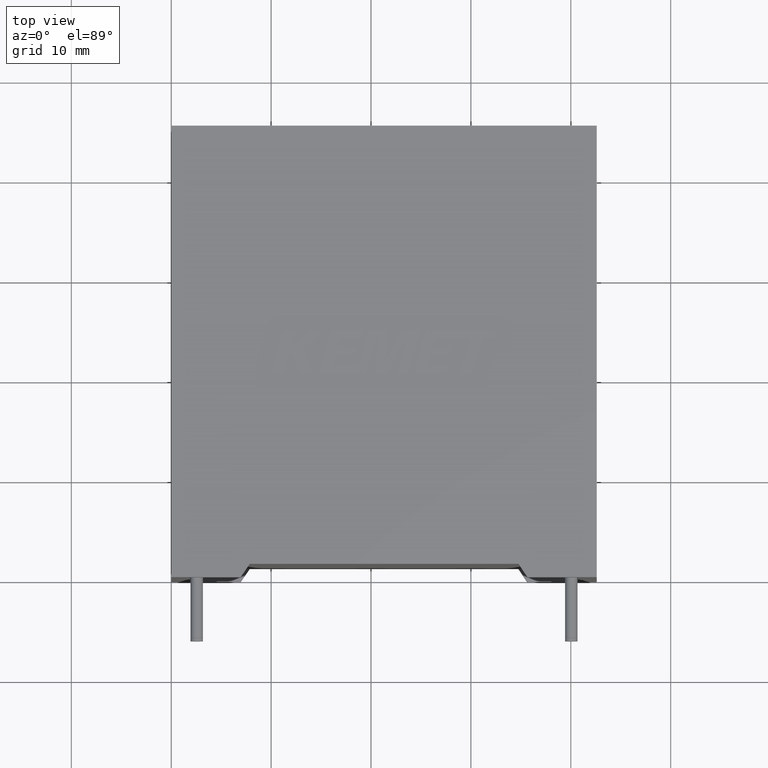
[diagram: clean part render]
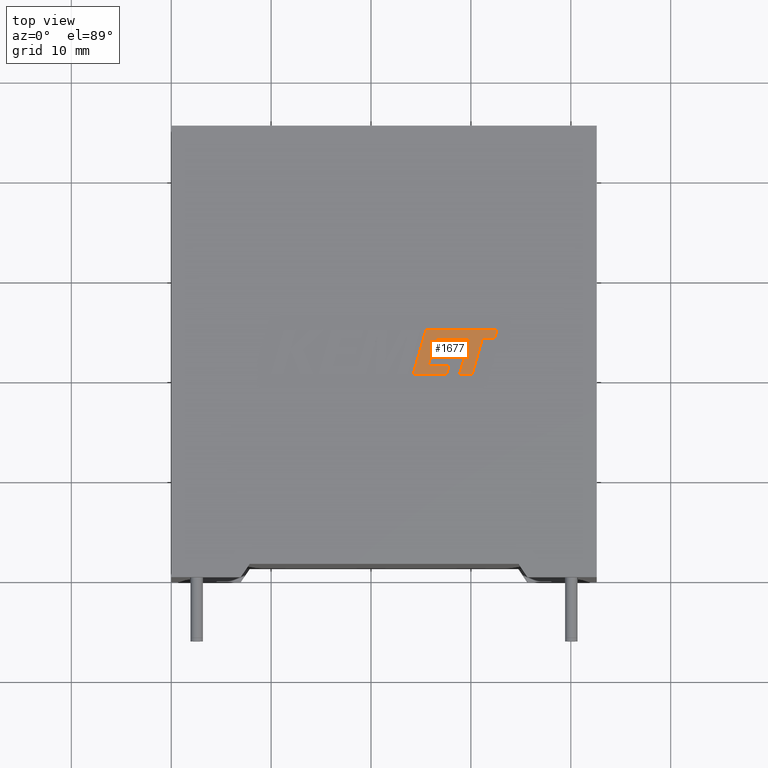
[diagram: same view with one face highlighted and labeled with its STEP entity id]
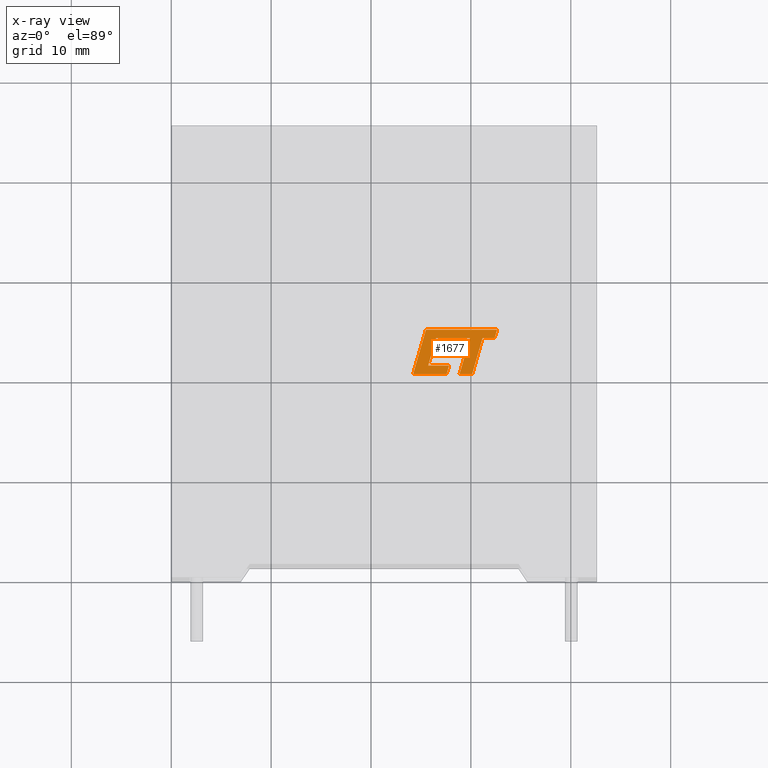
[diagram: x-ray of the same camera — body ghosted, the highlighted face saturated]
A machine part, top view. The second image highlights one B-rep face of the part: STEP entity #1677.
The next image is the same camera in x-ray: the body ghosted, the highlighted face saturated — about 0% of this face is hidden behind the body in this view.
In plain terms, the highlighted planar face has unit normal (-0, 0, 1).
Its self-contained STEP definition (entity closure, byte-faithful):
#18 = VECTOR ( 'NONE', #895, 999.9999999999998900 ) ;
#42 = VERTEX_POINT ( 'NONE', #101 ) ;
#77 = ORIENTED_EDGE ( 'NONE', *, *, #501, .T. ) ;
#82 = VECTOR ( 'NONE', #1812, 1000.000000000000100 ) ;
#84 = VECTOR ( 'NONE', #3087, 1000.000000000000000 ) ;
#101 = CARTESIAN_POINT ( 'NONE',  ( 25.49646665750985300, 24.76197267852246900, 30.40500000000000100 ) ) ;
#103 = CARTESIAN_POINT ( 'NONE',  ( 25.72339385838279600, 21.17046462307432700, 30.40500000000000100 ) ) ;
#114 = VECTOR ( 'NONE', #2768, 1000.000000000000000 ) ;
#176 = CARTESIAN_POINT ( 'NONE',  ( 28.54467650997437600, 23.91182509390189600, 30.40500000000000100 ) ) ;
#193 = EDGE_CURVE ( 'NONE', #1722, #2474, #2834, .T. ) ;
#261 = ORIENTED_EDGE ( 'NONE', *, *, #1432, .T. ) ;
#294 = DIRECTION ( 'NONE',  ( -0.0000000000000000000, 0.0000000000000000000, 1.000000000000000000 ) ) ;
#301 = CARTESIAN_POINT ( 'NONE',  ( 31.15634887918023200, 23.90555377866043300, 30.40500000000000100 ) ) ;
#323 = ORIENTED_EDGE ( 'NONE', *, *, #628, .T. ) ;
#363 = DIRECTION ( 'NONE',  ( -1.000000000000000000, -9.064081856670371200E-016, 0.0000000000000000000 ) ) ;
#379 = LINE ( 'NONE', #2329, #2901 ) ;
#387 = VECTOR ( 'NONE', #396, 1000.000000000000100 ) ;
#388 = CARTESIAN_POINT ( 'NONE',  ( 26.27200581737446300, 23.09253507756074300, 30.40500000000000100 ) ) ;
#396 = DIRECTION ( 'NONE',  ( 0.9999999968487352000, -7.938847107242143300E-005, 0.0000000000000000000 ) ) ;
#426 = CARTESIAN_POINT ( 'NONE',  ( 27.57182693403756000, 20.32643999999988400, 30.40500000000000100 ) ) ;
#435 = VERTEX_POINT ( 'NONE', #388 ) ;
#443 = DIRECTION ( 'NONE',  ( 0.2729786930695448600, 0.9620200793798656700, 0.0000000000000000000 ) ) ;
#501 = EDGE_CURVE ( 'NONE', #42, #1506, #2911, .T. ) ;
#572 = ORIENTED_EDGE ( 'NONE', *, *, #2956, .T. ) ;
#607 = ORIENTED_EDGE ( 'NONE', *, *, #861, .T. ) ;
#628 = EDGE_CURVE ( 'NONE', #1035, #42, #1795, .T. ) ;
#659 = VECTOR ( 'NONE', #940, 1000.000000000000000 ) ;
#681 = ORIENTED_EDGE ( 'NONE', *, *, #1208, .T. ) ;
#693 = LINE ( 'NONE', #2930, #2708 ) ;
#722 = VECTOR ( 'NONE', #2870, 1000.000000000000100 ) ;
#803 = ORIENTED_EDGE ( 'NONE', *, *, #193, .T. ) ;
#827 = LINE ( 'NONE', #426, #1162 ) ;
#839 = ORIENTED_EDGE ( 'NONE', *, *, #2152, .T. ) ;
#848 = EDGE_CURVE ( 'NONE', #2506, #2598, #1456, .T. ) ;
#861 = EDGE_CURVE ( 'NONE', #1991, #1035, #693, .T. ) ;
#866 = EDGE_CURVE ( 'NONE', #1506, #1790, #2590, .T. ) ;
#876 = LINE ( 'NONE', #1376, #84 ) ;
#895 = DIRECTION ( 'NONE',  ( 0.2762437428917328100, 0.9610876102172820600, 0.0000000000000000000 ) ) ;
#927 = CARTESIAN_POINT ( 'NONE',  ( 26.27200581737446300, 23.09253507756074300, 30.40500000000000100 ) ) ;
#940 = DIRECTION ( 'NONE',  ( 1.000000000000000000, 0.0000000000000000000, 0.0000000000000000000 ) ) ;
#1003 = CARTESIAN_POINT ( 'NONE',  ( 24.22065186225110600, 20.32643999999988400, 30.40500000000000100 ) ) ;
#1035 = VERTEX_POINT ( 'NONE', #2720 ) ;
#1041 = EDGE_CURVE ( 'NONE', #1743, #3072, #2172, .T. ) ;
#1046 = VERTEX_POINT ( 'NONE', #2301 ) ;
#1117 = DIRECTION ( 'NONE',  ( 0.2746918797667528000, 0.9615323037684214700, 0.0000000000000000000 ) ) ;
#1140 = EDGE_CURVE ( 'NONE', #2598, #1648, #1603, .T. ) ;
#1162 = VECTOR ( 'NONE', #443, 1000.000000000000100 ) ;
#1172 = CARTESIAN_POINT ( 'NONE',  ( 27.81132374233068600, 21.17046462307432700, 30.40500000000000100 ) ) ;
#1203 = DIRECTION ( 'NONE',  ( -1.000000000000000000, 0.0000000000000000000, 0.0000000000000000000 ) ) ;
#1208 = EDGE_CURVE ( 'NONE', #1046, #2321, #379, .T. ) ;
#1306 = DIRECTION ( 'NONE',  ( 0.2745159998572472800, 0.9615825319869199000, 0.0000000000000000000 ) ) ;
#1308 = CARTESIAN_POINT ( 'NONE',  ( 25.72339385838279600, 21.17046462307432700, 30.40500000000000100 ) ) ;
#1363 = VECTOR ( 'NONE', #1306, 1000.000000000000100 ) ;
#1366 = FACE_OUTER_BOUND ( 'NONE', #2140, .T. ) ;
#1376 = CARTESIAN_POINT ( 'NONE',  ( 28.17549160006052100, 23.09253507756074300, 30.40500000000000100 ) ) ;
#1432 = EDGE_CURVE ( 'NONE', #2288, #1743, #1950, .T. ) ;
#1456 = LINE ( 'NONE', #1172, #3015 ) ;
#1480 = CARTESIAN_POINT ( 'NONE',  ( 28.86409549902650400, 20.32643999999988400, 30.40500000000000100 ) ) ;
#1491 = CARTESIAN_POINT ( 'NONE',  ( 32.37075679330736500, 23.90545736867256800, 30.40500000000000100 ) ) ;
#1501 = CARTESIAN_POINT ( 'NONE',  ( 25.49646665750985300, 24.76197267852246900, 30.40500000000000100 ) ) ;
#1506 = VERTEX_POINT ( 'NONE', #1003 ) ;
#1534 = VECTOR ( 'NONE', #2379, 1000.000000000000100 ) ;
#1574 = CARTESIAN_POINT ( 'NONE',  ( 29.89313066474344200, 23.90555377867145700, 30.40500000000000100 ) ) ;
#1592 = PLANE ( 'NONE',  #2563 ) ;
#1603 = LINE ( 'NONE', #103, #1363 ) ;
#1621 = CARTESIAN_POINT ( 'NONE',  ( 27.57182693403756000, 20.32643999999988400, 30.40500000000000100 ) ) ;
#1648 = VERTEX_POINT ( 'NONE', #2971 ) ;
#1677 = ADVANCED_FACE ( 'NONE', ( #1366 ), #1592, .T. ) ;
#1694 = EDGE_CURVE ( 'NONE', #2321, #435, #876, .T. ) ;
#1711 = EDGE_CURVE ( 'NONE', #2474, #1991, #2983, .T. ) ;
#1722 = VERTEX_POINT ( 'NONE', #3098 ) ;
#1743 = VERTEX_POINT ( 'NONE', #3066 ) ;
#1748 = CARTESIAN_POINT ( 'NONE',  ( -0.1503410928526370500, -1.896653983250437700, 30.40500000000000100 ) ) ;
#1759 = LINE ( 'NONE', #927, #1534 ) ;
#1785 = CARTESIAN_POINT ( 'NONE',  ( 28.86409549902650400, 20.32643999999988400, 30.40500000000000100 ) ) ;
#1790 = VERTEX_POINT ( 'NONE', #1621 ) ;
#1795 = LINE ( 'NONE', #3040, #1877 ) ;
#1812 = DIRECTION ( 'NONE',  ( -0.2763173343569894600, -0.9610664548998927300, 0.0000000000000000000 ) ) ;
#1837 = VECTOR ( 'NONE', #2191, 1000.000000000000200 ) ;
#1872 = EDGE_CURVE ( 'NONE', #435, #2484, #1759, .T. ) ;
#1877 = VECTOR ( 'NONE', #363, 1000.000000000000000 ) ;
#1887 = ORIENTED_EDGE ( 'NONE', *, *, #866, .T. ) ;
#1937 = CARTESIAN_POINT ( 'NONE',  ( 28.54467650997437600, 23.91182509390189600, 30.40500000000000100 ) ) ;
#1950 = LINE ( 'NONE', #1937, #722 ) ;
#1961 = ORIENTED_EDGE ( 'NONE', *, *, #1872, .T. ) ;
#1991 = VERTEX_POINT ( 'NONE', #1491 ) ;
#1995 = DIRECTION ( 'NONE',  ( 1.000000000000000000, 0.0000000000000000000, 0.0000000000000000000 ) ) ;
#1996 = ORIENTED_EDGE ( 'NONE', *, *, #2043, .T. ) ;
#2043 = EDGE_CURVE ( 'NONE', #1648, #1046, #2090, .T. ) ;
#2090 = LINE ( 'NONE', #2486, #114 ) ;
#2140 = EDGE_LOOP ( 'NONE', ( #839, #261, #2234, #2205, #803, #2557, #607, #323, #77, #1887, #572, #2686, #3017, #1996, #681, #2793, #1961 ) ) ;
#2152 = EDGE_CURVE ( 'NONE', #2484, #2288, #3001, .T. ) ;
#2172 = LINE ( 'NONE', #1574, #82 ) ;
#2191 = DIRECTION ( 'NONE',  ( -0.2764273280489751300, -0.9610348236706639500, 0.0000000000000000000 ) ) ;
#2205 = ORIENTED_EDGE ( 'NONE', *, *, #2641, .T. ) ;
#2226 = CARTESIAN_POINT ( 'NONE',  ( 26.51206906704381800, 23.91754345445730200, 30.40500000000000100 ) ) ;
#2234 = ORIENTED_EDGE ( 'NONE', *, *, #1041, .T. ) ;
#2236 = LINE ( 'NONE', #1785, #3111 ) ;
#2288 = VERTEX_POINT ( 'NONE', #176 ) ;
#2301 = CARTESIAN_POINT ( 'NONE',  ( 27.94128157793912900, 22.27270559324086100, 30.40500000000000100 ) ) ;
#2311 = VECTOR ( 'NONE', #2806, 999.9999999999998900 ) ;
#2321 = VERTEX_POINT ( 'NONE', #2376 ) ;
#2329 = CARTESIAN_POINT ( 'NONE',  ( 27.94128157793912900, 22.27270559324086100, 30.40500000000000100 ) ) ;
#2367 = CARTESIAN_POINT ( 'NONE',  ( 30.12761042085275800, 20.32643999999988400, 30.40500000000000100 ) ) ;
#2376 = CARTESIAN_POINT ( 'NONE',  ( 28.17549160006052100, 23.09253507756074300, 30.40500000000000100 ) ) ;
#2379 = DIRECTION ( 'NONE',  ( 0.2793947940814967600, 0.9601763114346021400, 0.0000000000000000000 ) ) ;
#2474 = VERTEX_POINT ( 'NONE', #301 ) ;
#2484 = VERTEX_POINT ( 'NONE', #2226 ) ;
#2486 = CARTESIAN_POINT ( 'NONE',  ( 26.03806552924152100, 22.27270559324086100, 30.40500000000000100 ) ) ;
#2506 = VERTEX_POINT ( 'NONE', #2977 ) ;
#2557 = ORIENTED_EDGE ( 'NONE', *, *, #1711, .T. ) ;
#2563 = AXIS2_PLACEMENT_3D ( 'NONE', #1748, #294, #1995 ) ;
#2590 = LINE ( 'NONE', #2917, #659 ) ;
#2598 = VERTEX_POINT ( 'NONE', #1308 ) ;
#2599 = CARTESIAN_POINT ( 'NONE',  ( 31.15634887918023200, 23.90555377866043300, 30.40500000000000100 ) ) ;
#2641 = EDGE_CURVE ( 'NONE', #3072, #1722, #2236, .T. ) ;
#2642 = DIRECTION ( 'NONE',  ( 0.2762033010288772500, 0.9610992334305296100, 0.0000000000000000000 ) ) ;
#2686 = ORIENTED_EDGE ( 'NONE', *, *, #848, .T. ) ;
#2708 = VECTOR ( 'NONE', #2642, 999.9999999999998900 ) ;
#2720 = CARTESIAN_POINT ( 'NONE',  ( 32.61690448309159500, 24.76197267852247200, 30.40500000000000100 ) ) ;
#2744 = DIRECTION ( 'NONE',  ( 1.000000000000000000, 0.0000000000000000000, 0.0000000000000000000 ) ) ;
#2768 = DIRECTION ( 'NONE',  ( 1.000000000000000000, 0.0000000000000000000, 0.0000000000000000000 ) ) ;
#2793 = ORIENTED_EDGE ( 'NONE', *, *, #1694, .T. ) ;
#2806 = DIRECTION ( 'NONE',  ( 0.9999960426590096500, -0.002813301676026588700, 0.0000000000000000000 ) ) ;
#2829 = CARTESIAN_POINT ( 'NONE',  ( 26.51206906704381800, 23.91754345445730200, 30.40500000000000100 ) ) ;
#2834 = LINE ( 'NONE', #2367, #18 ) ;
#2870 = DIRECTION ( 'NONE',  ( 0.9999891854650021500, -0.004650693823667352200, 0.0000000000000000000 ) ) ;
#2901 = VECTOR ( 'NONE', #1117, 999.9999999999998900 ) ;
#2911 = LINE ( 'NONE', #1501, #1837 ) ;
#2917 = CARTESIAN_POINT ( 'NONE',  ( 24.22065186225110600, 20.32643999999988400, 30.40500000000000100 ) ) ;
#2930 = CARTESIAN_POINT ( 'NONE',  ( 32.37075679330736500, 23.90545736867256800, 30.40500000000000100 ) ) ;
#2956 = EDGE_CURVE ( 'NONE', #1790, #2506, #827, .T. ) ;
#2971 = CARTESIAN_POINT ( 'NONE',  ( 26.03806552924152100, 22.27270559324086100, 30.40500000000000100 ) ) ;
#2977 = CARTESIAN_POINT ( 'NONE',  ( 27.81132374233068600, 21.17046462307432700, 30.40500000000000100 ) ) ;
#2983 = LINE ( 'NONE', #2599, #387 ) ;
#3001 = LINE ( 'NONE', #2829, #2311 ) ;
#3015 = VECTOR ( 'NONE', #1203, 1000.000000000000000 ) ;
#3017 = ORIENTED_EDGE ( 'NONE', *, *, #1140, .T. ) ;
#3040 = CARTESIAN_POINT ( 'NONE',  ( 32.61690448309159500, 24.76197267852247200, 30.40500000000000100 ) ) ;
#3066 = CARTESIAN_POINT ( 'NONE',  ( 29.89313066474344200, 23.90555377867145700, 30.40500000000000100 ) ) ;
#3072 = VERTEX_POINT ( 'NONE', #1480 ) ;
#3087 = DIRECTION ( 'NONE',  ( -1.000000000000000000, 0.0000000000000000000, 0.0000000000000000000 ) ) ;
#3098 = CARTESIAN_POINT ( 'NONE',  ( 30.12761042085275800, 20.32643999999988400, 30.40500000000000100 ) ) ;
#3111 = VECTOR ( 'NONE', #2744, 1000.000000000000000 ) ;